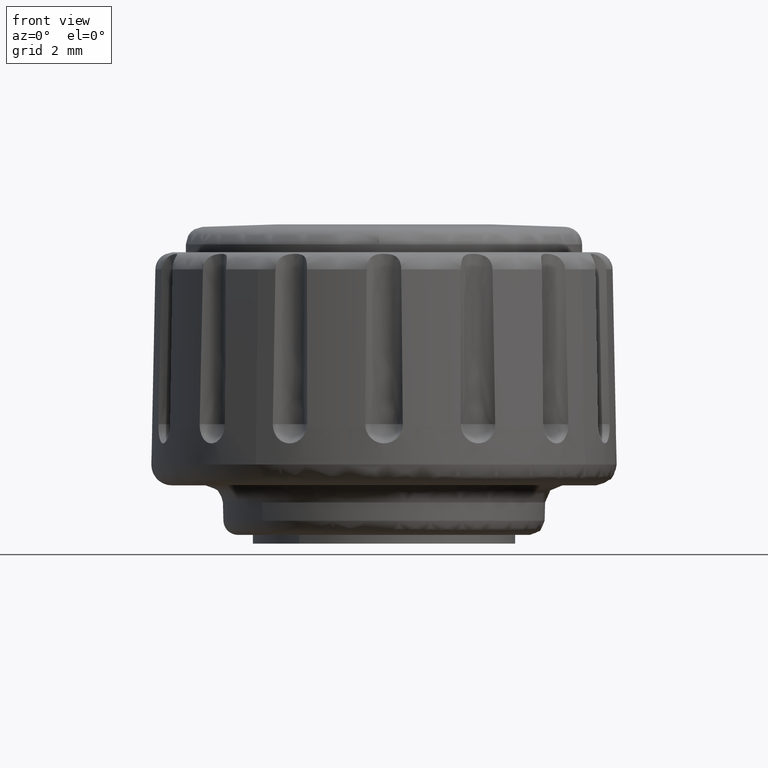
[diagram: clean part render]
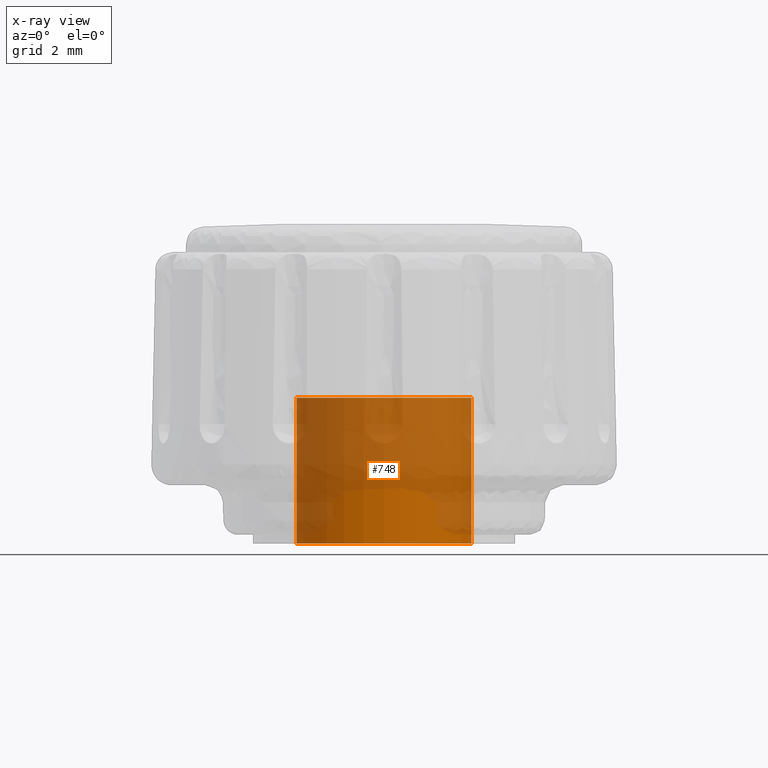
[diagram: x-ray — body ghosted, one internal face saturated and labeled with its STEP entity id]
A machine part, front view, then the same camera in x-ray: the body is ghosted and one INTERNAL B-rep face — a face not visible from any outside direction — is saturated and labeled: STEP entity #748.
In plain terms, the highlighted face is a freeform B-spline surface patch.
Its self-contained STEP definition (entity closure, byte-faithful):
#583=CARTESIAN_POINT('',(1.937226115146076,2.290666928821395,5.125000000000002));
#584=CARTESIAN_POINT('',(2.002784018511870,2.235224349694545,5.125000000000001));
#585=CARTESIAN_POINT('',(2.065063727081261,2.176123113036862,5.125000000000001));
#586=CARTESIAN_POINT('',(4.241186840118123,0.111059385955601,5.125000000000001));
#587=CARTESIAN_POINT('',(2.176123113036862,-2.065063727081261,5.125000000000001));
#588=CARTESIAN_POINT('',(0.111059385955601,-4.241186840118123,5.125000000000001));
#589=CARTESIAN_POINT('',(-2.065063727081261,-2.176123113036862,5.125000000000001));
#590=CARTESIAN_POINT('',(-4.241186840118123,-0.111059385955601,5.125000000000001));
#591=CARTESIAN_POINT('',(-2.176123113036862,2.065063727081261,5.125000000000001));
#592=CARTESIAN_POINT('',(1.937226115146076,2.290666928821395,-0.128125000000001));
#593=CARTESIAN_POINT('',(2.002784018511870,2.235224349694545,-0.128125000000001));
#594=CARTESIAN_POINT('',(2.065063727081261,2.176123113036862,-0.128125000000001));
#595=CARTESIAN_POINT('',(4.241186840118123,0.111059385955601,-0.128125000000001));
#596=CARTESIAN_POINT('',(2.176123113036862,-2.065063727081261,-0.128125000000001));
#597=CARTESIAN_POINT('',(0.111059385955601,-4.241186840118123,-0.128125000000001));
#598=CARTESIAN_POINT('',(-2.065063727081261,-2.176123113036862,-0.128125000000001));
#599=CARTESIAN_POINT('',(-4.241186840118123,-0.111059385955601,-0.128125000000001));
#600=CARTESIAN_POINT('',(-2.176123113036862,2.065063727081261,-0.128125000000001));
#608=(BOUNDED_SURFACE()B_SPLINE_SURFACE(2,1,((#583,#592),(#584,#593),(#585,#594),(#586,#595),(#587,#596),(#588,#597),(#589,#598),(#590,#599),(#591,#600)),.UNSPECIFIED.,.F.,.F.,.U.)B_SPLINE_SURFACE_WITH_KNOTS((3,2,2,2,3),(2,2),(0.0,0.198822509939086,5.169385258416225,10.139948006893370,15.110510755370500),(0.0,5.253125000000002),.UNSPECIFIED.)GEOMETRIC_REPRESENTATION_ITEM()RATIONAL_B_SPLINE_SURFACE(((0.977505800795127,0.977505800795127),(0.988284271247462,0.988284271247462),(1.0,1.0),(0.707106781186548,0.707106781186548),(1.0,1.0),(0.707106781186548,0.707106781186548),(1.0,1.0),(0.707106781186548,0.707106781186548),(1.0,1.0)))REPRESENTATION_ITEM('')SURFACE());
#609=CARTESIAN_POINT('',(1.937226152336257,2.290666957196374,5.000000000000081));
#610=VERTEX_POINT('',#609);
#611=CARTESIAN_POINT('',(3.0,0.0,5.0));
#612=VERTEX_POINT('',#611);
#613=CARTESIAN_POINT('',(1.937226152336257,2.290666957196374,5.000000000000081));
#614=CARTESIAN_POINT('',(2.071983937177897,2.176719538708280,5.000000000000078));
#615=CARTESIAN_POINT('',(2.326100636934063,1.920111158785177,5.000000000000076));
#616=CARTESIAN_POINT('',(2.611193735837252,1.504025332647844,5.000000000000053));
#617=CARTESIAN_POINT('',(2.801574105086463,1.097256695084348,5.000000000000007));
#618=CARTESIAN_POINT('',(2.954955551755799,0.610851207541851,5.000000000000147));
#619=CARTESIAN_POINT('',(3.000069795957837,0.244358651478374,4.999999999999902));
#620=CARTESIAN_POINT('',(3.0,0.0,5.0));
#621=B_SPLINE_CURVE_WITH_KNOTS('',3,(#613,#614,#615,#616,#617,#618,#619,#620),.UNSPECIFIED.,.F.,.U.,(4,1,1,1,1,4),(4.354087E-009,0.529426330314725,1.079217714571296,1.506828082856734,1.873356494013701,2.606409881292388),.UNSPECIFIED.);
#622=EDGE_CURVE('',#610,#612,#621,.T.);
#623=ORIENTED_EDGE('',*,*,#622,.F.);
#624=CARTESIAN_POINT('',(1.937226152242185,2.290666957275931,-2.768443E-016));
#625=VERTEX_POINT('',#624);
#626=CARTESIAN_POINT('',(1.937226152336257,2.290666957196374,5.000000000000081));
#627=CARTESIAN_POINT('',(1.937226152242185,2.290666957275931,-2.768443E-016));
#628=QUASI_UNIFORM_CURVE('',1,(#626,#627),.UNSPECIFIED.,.F.,.U.);
#629=EDGE_CURVE('',#610,#625,#628,.T.);
#630=ORIENTED_EDGE('',*,*,#629,.T.);
#631=CARTESIAN_POINT('',(3.0,0.0,0.0));
#632=VERTEX_POINT('',#631);
#633=CARTESIAN_POINT('',(1.937226152242185,2.290666957275931,-2.768443E-016));
#634=CARTESIAN_POINT('',(2.097913974716796,2.154819795757311,-2.604261E-016));
#635=CARTESIAN_POINT('',(2.324414688699796,1.918133374259671,-2.318208E-016));
#636=CARTESIAN_POINT('',(2.608783233662945,1.503092699499706,-1.816600E-016));
#637=CARTESIAN_POINT('',(2.827298108156146,1.056238339434161,-1.276543E-016));
#638=CARTESIAN_POINT('',(2.970094762130734,0.529428437037642,-6.398539E-017));
#639=CARTESIAN_POINT('',(3.000007034839046,0.162899873201111,-1.968767E-017));
#640=CARTESIAN_POINT('',(3.0,0.0,0.0));
#641=B_SPLINE_CURVE_WITH_KNOTS('',3,(#633,#634,#635,#636,#637,#638,#639,#640),.UNSPECIFIED.,.F.,.U.,(4,1,1,1,1,4),(4.353263E-009,0.631239772133855,0.977403985258975,1.506828082927646,2.117708117290853,2.606409881415598),.UNSPECIFIED.);
#642=EDGE_CURVE('',#625,#632,#641,.T.);
#643=ORIENTED_EDGE('',*,*,#642,.T.);
#644=CARTESIAN_POINT('',(-0.000000185296491,-2.999999999999994,0.0));
#645=VERTEX_POINT('',#644);
#646=CARTESIAN_POINT('',(3.0,0.0,0.0));
#647=CARTESIAN_POINT('',(3.000002488283924,-0.134988169434220,0.0));
#648=CARTESIAN_POINT('',(2.979267271808625,-0.441784760319388,0.0));
#649=CARTESIAN_POINT('',(2.865945958857307,-0.946545334486370,0.0));
#650=CARTESIAN_POINT('',(2.648984944823643,-1.444214934562021,0.0));
#651=CARTESIAN_POINT('',(2.355617091069174,-1.877452354166756,0.0));
#652=CARTESIAN_POINT('',(2.074065582600314,-2.178670455217802,0.0));
#653=CARTESIAN_POINT('',(1.785848835919436,-2.418173251801709,0.0));
#654=CARTESIAN_POINT('',(1.503572648317163,-2.604289804492423,0.0));
#655=CARTESIAN_POINT('',(1.140671986087954,-2.785575264252782,0.0));
#656=CARTESIAN_POINT('',(0.644249121388043,-2.951277279047127,0.0));
#657=CARTESIAN_POINT('',(0.239305553837767,-3.000055282540481,0.0));
#658=CARTESIAN_POINT('',(-0.000000185296491,-2.999999999999994,0.0));
#659=B_SPLINE_CURVE_WITH_KNOTS('',3,(#646,#647,#648,#649,#650,#651,#652,#653,#654,#655,#656,#657,#658),.UNSPECIFIED.,.F.,.U.,(4,1,1,1,1,1,1,1,1,1,4),(0.000000013188990,0.404966241766261,0.920389585945749,1.546255439501258,2.024863367389850,2.485052102543595,2.779575319723086,3.147731004861512,3.497481622417724,3.994493510891428,4.712396477192031),.UNSPECIFIED.);
#660=EDGE_CURVE('',#632,#645,#659,.T.);
#661=ORIENTED_EDGE('',*,*,#660,.T.);
#662=CARTESIAN_POINT('',(-3.0,0.0,0.0));
#663=VERTEX_POINT('',#662);
#664=CARTESIAN_POINT('',(-0.000000185296491,-2.999999999999994,0.0));
#665=CARTESIAN_POINT('',(-0.196350796389408,-3.000023853479210,0.0));
#666=CARTESIAN_POINT('',(-0.589043702192621,-2.961315776593144,0.0));
#667=CARTESIAN_POINT('',(-1.090548697569072,-2.809192135076815,0.0));
#668=CARTESIAN_POINT('',(-1.471239014908235,-2.621910988154454,0.0));
#669=CARTESIAN_POINT('',(-1.765923193215463,-2.432757974288415,0.0));
#670=CARTESIAN_POINT('',(-2.100260851036098,-2.161833710071933,0.0));
#671=CARTESIAN_POINT('',(-2.406747076529977,-1.815208360581170,0.0));
#672=CARTESIAN_POINT('',(-2.688770821729086,-1.360643955427609,0.0));
#673=CARTESIAN_POINT('',(-2.851569839731832,-0.967607597683172,0.0));
#674=CARTESIAN_POINT('',(-2.970972643682677,-0.490862975917799,0.0));
#675=CARTESIAN_POINT('',(-3.000028980870947,-0.196351348533632,0.0));
#676=CARTESIAN_POINT('',(-3.0,0.0,0.0));
#677=B_SPLINE_CURVE_WITH_KNOTS('',3,(#664,#665,#666,#667,#668,#669,#670,#671,#672,#673,#674,#675,#676),.UNSPECIFIED.,.F.,.U.,(4,1,1,1,1,1,1,1,1,1,4),(0.000000013211842,0.589049011613572,1.178099091683598,1.564665718509765,1.859192599365211,2.227344718824377,2.853203917651712,3.239771559714085,3.828822848608295,4.123349312242165,4.712396268319360),.UNSPECIFIED.);
#678=EDGE_CURVE('',#645,#663,#677,.T.);
#679=ORIENTED_EDGE('',*,*,#678,.T.);
#680=CARTESIAN_POINT('',(-2.176123071987628,2.065063703133468,-2.775558E-016));
#681=VERTEX_POINT('',#680);
#682=CARTESIAN_POINT('',(-3.0,0.0,0.0));
#683=CARTESIAN_POINT('',(-3.000009796736046,0.166078969415169,-2.232191E-017));
#684=CARTESIAN_POINT('',(-2.970381229662583,0.521962130472885,-7.015454E-017));
#685=CARTESIAN_POINT('',(-2.828963745680624,1.051554131344785,-1.413346E-016));
#686=CARTESIAN_POINT('',(-2.569363476365124,1.587847033966317,-2.134152E-016));
#687=CARTESIAN_POINT('',(-2.323135756234203,1.910196293309266,-2.567407E-016));
#688=CARTESIAN_POINT('',(-2.176123071987628,2.065063703133468,-2.775558E-016));
#689=B_SPLINE_CURVE_WITH_KNOTS('',3,(#682,#683,#684,#685,#686,#687,#688),.UNSPECIFIED.,.F.,.U.,(4,1,1,1,4),(3.054159E-009,0.498237257087053,1.067654481813753,1.637066258524921,2.277658005930021),.UNSPECIFIED.);
#690=EDGE_CURVE('',#663,#681,#689,.T.);
#691=ORIENTED_EDGE('',*,*,#690,.T.);
#692=CARTESIAN_POINT('',(-2.176123071897310,2.065063703228642,4.999999999999893));
#693=VERTEX_POINT('',#692);
#694=CARTESIAN_POINT('',(-2.176123071897310,2.065063703228642,4.999999999999893));
#695=CARTESIAN_POINT('',(-2.176123071987628,2.065063703133468,-2.775558E-016));
#696=QUASI_UNIFORM_CURVE('',1,(#694,#695),.UNSPECIFIED.,.F.,.U.);
#697=EDGE_CURVE('',#693,#681,#696,.T.);
#698=ORIENTED_EDGE('',*,*,#697,.F.);
#699=CARTESIAN_POINT('',(-3.0,0.0,5.0));
#700=VERTEX_POINT('',#699);
#701=CARTESIAN_POINT('',(-3.0,0.0,5.0));
#702=CARTESIAN_POINT('',(-3.000026177221404,0.207600252913072,4.999999999999996));
#703=CARTESIAN_POINT('',(-2.955505835979818,0.634650746379172,4.999999999999957));
#704=CARTESIAN_POINT('',(-2.765611642365658,1.212921543357756,4.999999999999944));
#705=CARTESIAN_POINT('',(-2.492302967467706,1.694594894103660,4.999999999999903));
#706=CARTESIAN_POINT('',(-2.282283242182341,1.953203994533844,4.999999999999906));
#707=CARTESIAN_POINT('',(-2.176123071897310,2.065063703228642,4.999999999999893));
#708=B_SPLINE_CURVE_WITH_KNOTS('',3,(#701,#702,#703,#704,#705,#706,#707),.UNSPECIFIED.,.F.,.U.,(4,1,1,1,4),(3.053011E-009,0.622797327568792,1.281179653749047,1.815009252593526,2.277658006061235),.UNSPECIFIED.);
#709=EDGE_CURVE('',#700,#693,#708,.T.);
#710=ORIENTED_EDGE('',*,*,#709,.F.);
#711=CARTESIAN_POINT('',(-0.000000185296491,-2.999999999999994,5.000000000000001));
#712=VERTEX_POINT('',#711);
#713=CARTESIAN_POINT('',(-0.000000185296491,-2.999999999999994,5.000000000000001));
#714=CARTESIAN_POINT('',(-0.147260898330543,-3.000007403974176,5.000000000000005));
#715=CARTESIAN_POINT('',(-0.423374571372927,-2.979629253628539,4.999999999999989));
#716=CARTESIAN_POINT('',(-0.808105238401975,-2.896946706050722,5.000000000000023));
#717=CARTESIAN_POINT('',(-1.162266889140059,-2.773891224468746,5.000000000000019));
#718=CARTESIAN_POINT('',(-1.471240026986073,-2.621914109659867,4.999999999999993));
#719=CARTESIAN_POINT('',(-1.765926344278775,-2.432760537638165,5.000000000000053));
#720=CARTESIAN_POINT('',(-2.033374320459437,-2.216004641028912,4.999999999999960));
#721=CARTESIAN_POINT('',(-2.332018026160851,-1.906181377054357,5.000000000000041));
#722=CARTESIAN_POINT('',(-2.594576191293203,-1.533378221841976,4.999999999999950));
#723=CARTESIAN_POINT('',(-2.829078339501056,-1.045357623773336,4.999999999999960));
#724=CARTESIAN_POINT('',(-2.968942172659673,-0.539963928780020,5.000000000000200));
#725=CARTESIAN_POINT('',(-3.000007026448436,-0.165667434407336,4.999999999999763));
#726=CARTESIAN_POINT('',(-3.0,0.0,5.0));
#727=B_SPLINE_CURVE_WITH_KNOTS('',3,(#713,#714,#715,#716,#717,#718,#719,#720,#721,#722,#723,#724,#725,#726),.UNSPECIFIED.,.F.,.U.,(4,1,1,1,1,1,1,1,1,1,1,4),(0.000000013211842,0.441781577778081,0.828348936464955,1.178099091683598,1.564665718509765,1.859192599365211,2.227344718824377,2.595492671667863,3.147730865299456,3.589520955063162,4.215390490673809,4.712396268319360),.UNSPECIFIED.);
#728=EDGE_CURVE('',#712,#700,#727,.T.);
#729=ORIENTED_EDGE('',*,*,#728,.F.);
#730=CARTESIAN_POINT('',(3.0,0.0,5.0));
#731=CARTESIAN_POINT('',(3.000021046586269,-0.190213233041070,4.999999999999996));
#732=CARTESIAN_POINT('',(2.963117624042456,-0.576770856728044,5.000000000000030));
#733=CARTESIAN_POINT('',(2.807066870709740,-1.102845928639268,4.999999999999931));
#734=CARTESIAN_POINT('',(2.582870128940002,-1.548196702141744,5.000000000000116));
#735=CARTESIAN_POINT('',(2.312517359922739,-1.929585921827298,4.999999999999937));
#736=CARTESIAN_POINT('',(2.008186077053762,-2.243397304391356,5.000000000000037));
#737=CARTESIAN_POINT('',(1.695739727560090,-2.482625984804628,4.999999999999973));
#738=CARTESIAN_POINT('',(1.353237161616382,-2.687927833375100,5.000000000000052));
#739=CARTESIAN_POINT('',(1.019272284873711,-2.831085340493454,4.999999999999989));
#740=CARTESIAN_POINT('',(0.546077306081096,-2.963596829028892,5.000000000000003));
#741=CARTESIAN_POINT('',(0.227035158119748,-3.000051809966311,4.999999999999993));
#742=CARTESIAN_POINT('',(-0.000000185296491,-2.999999999999994,5.000000000000001));
#743=B_SPLINE_CURVE_WITH_KNOTS('',3,(#730,#731,#732,#733,#734,#735,#736,#737,#738,#739,#740,#741,#742),.UNSPECIFIED.,.F.,.U.,(4,1,1,1,1,1,1,1,1,1,4),(0.000000013188990,0.570637434960350,1.159691281646162,1.638296142954510,2.061677445315862,2.558677927203726,2.945245226685634,3.239771703361037,3.755192444264740,4.031308368550274,4.712396477192031),.UNSPECIFIED.);
#744=EDGE_CURVE('',#612,#712,#743,.T.);
#745=ORIENTED_EDGE('',*,*,#744,.F.);
#746=EDGE_LOOP('',(#623,#630,#643,#661,#679,#691,#698,#710,#729,#745));
#747=FACE_OUTER_BOUND('',#746,.T.);
#748=ADVANCED_FACE('',(#747),#608,.F.);